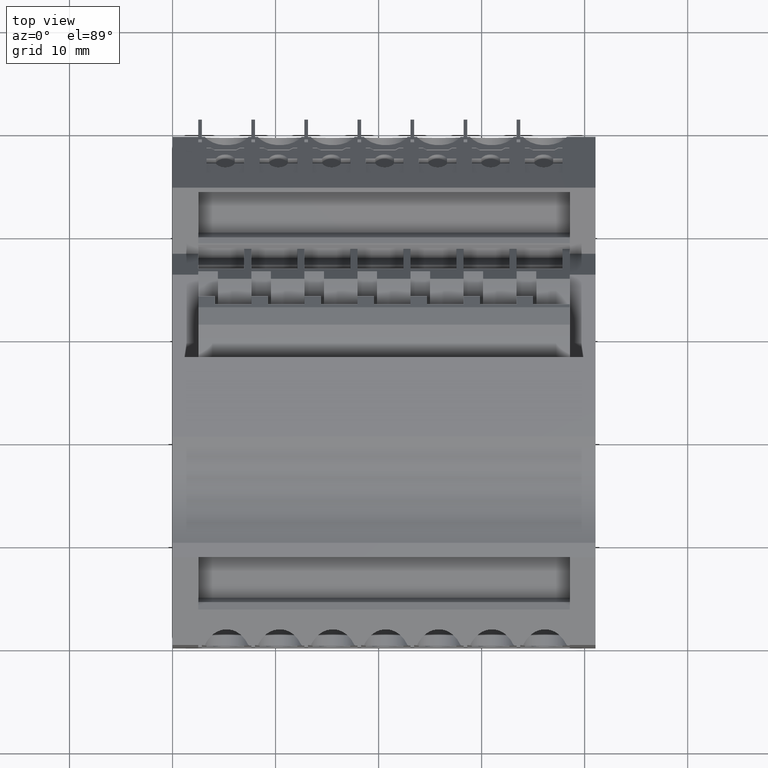
[diagram: clean part render]
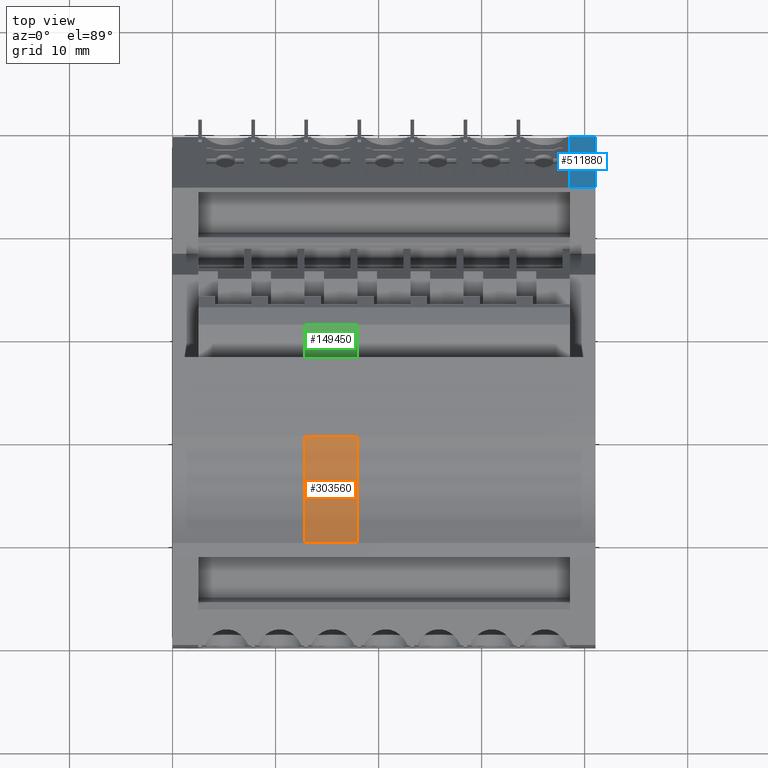
[diagram: same view with three faces highlighted in distinct colors, each labeled with its STEP entity id]
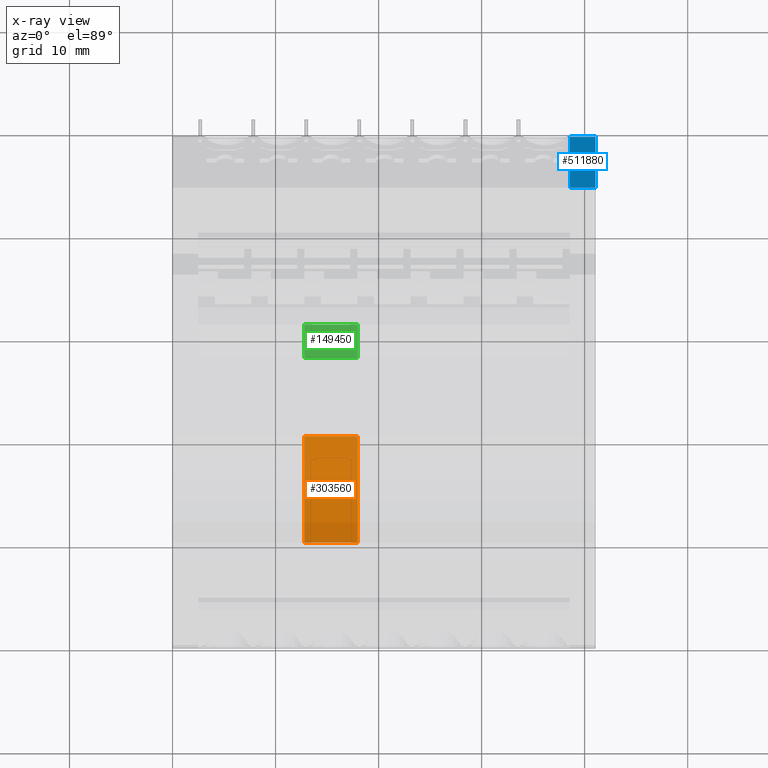
[diagram: x-ray of the same camera — body ghosted, the three highlighted faces saturated]
A machine part, top view with three faces highlighted in distinct colors.
The next image is the same camera in x-ray (body ghosted, the three faces saturated) — at least one of them is partly hidden behind the body in this view.
Their STEP definitions:

[orange] entity #303560 — the highlighted cylindrical surface (partial cylindrical patch) has radius 10 mm, axis along (1, 0, -0).
#49520=CARTESIAN_POINT('',(440.590572543565,697.534347620336,
82.9450001635446));
#49530=DIRECTION('',(3.65710502038586E-10,4.95141851786755E-10,1.));
#49540=VECTOR('',#49530,1.);
#49550=LINE('',#49520,#49540);
#50230=CARTESIAN_POINT('',(430.260883799414,697.534347634237,
82.9450001673223));
#50240=DIRECTION('',(3.65710502038586E-10,4.95141851786755E-10,1.));
#50250=VECTOR('',#50240,1.);
#50260=LINE('',#50230,#50250);
#50290=CARTESIAN_POINT('',(430.260883797759,697.534347634006,
78.4199999840403));
#50300=VERTEX_POINT('',#50290);
#84940=CARTESIAN_POINT('',(435.425728183013,706.097313387596,
82.9450001611936));
#84950=DIRECTION('',(3.65710502038586E-10,4.95141851786755E-10,1.));
#84960=DIRECTION('',(-0.386155668810907,-0.922433628747999,
5.97956747321646E-10));
#84970=AXIS2_PLACEMENT_3D('',#84940,#84950,#84960);
#84980=CYLINDRICAL_SURFACE('',#84970,10.);
#127200=CARTESIAN_POINT('',(430.260883798556,697.534347635201,
83.5699999847475));
#127210=VERTEX_POINT('',#127200);
#202580=CARTESIAN_POINT('',(440.590572545468,697.534347621655,
83.5699999809698));
#202590=VERTEX_POINT('',#202580);
#214520=CARTESIAN_POINT('',(440.59057254191,697.534347621499,
78.4199999832219));
#214530=VERTEX_POINT('',#214520);
#214560=CARTESIAN_POINT('',(435.425728181358,706.097313385355,
78.4199999786187));
#214570=DIRECTION('',(3.65710502038586E-10,4.95141851786755E-10,1.));
#214580=DIRECTION('',(-0.386155668810907,-0.922433628747999,
5.97956728772318E-10));
#214590=AXIS2_PLACEMENT_3D('',#214560,#214570,#214580);
#214600=CIRCLE('',#214590,10.);
#214610=EDGE_CURVE('',#50300,#214530,#214600,.T.);
#275060=EDGE_CURVE('',#50300,#127210,#50260,.T.);
#300520=EDGE_CURVE('',#214530,#202590,#49550,.T.);
#303440=ORIENTED_EDGE('',*,*,#275060,.T.);
#303450=ORIENTED_EDGE('',*,*,#214610,.F.);
#303460=ORIENTED_EDGE('',*,*,#300520,.F.);
#303470=CARTESIAN_POINT('',(435.425728183241,706.097313387905,
83.5699999786187));
#303480=DIRECTION('',(3.65710502038586E-10,4.95141851786755E-10,1.));
#303490=DIRECTION('',(-0.386155668810907,-0.922433628747999,
5.97956728772318E-10));
#303500=AXIS2_PLACEMENT_3D('',#303470,#303480,#303490);
#303510=CIRCLE('',#303500,10.);
#303520=EDGE_CURVE('',#127210,#202590,#303510,.T.);
#303530=ORIENTED_EDGE('',*,*,#303520,.T.);
#303540=EDGE_LOOP('',(#303530,#303460,#303450,#303440));
#303550=FACE_OUTER_BOUND('',#303540,.T.);
#303560=ADVANCED_FACE('',(#303550),#84980,.F.);

[blue] entity #511880 — the highlighted planar face has unit normal (-0, 0.766, 0.6428).
#164320=CARTESIAN_POINT('',(464.820007046268,692.446315891856,
104.169999989755));
#164330=VERTEX_POINT('',#164320);
#238550=CARTESIAN_POINT('',(469.853158763273,686.448039243706,
104.169999993119));
#238560=VERTEX_POINT('',#238550);
#238590=CARTESIAN_POINT('',(460.05709194241,698.122537085043,
104.16999997438));
#238600=DIRECTION('',(-0.642787609225153,0.766044443506127,
-2.68778880427812E-10));
#238610=VECTOR('',#238600,1.);
#238620=LINE('',#238590,#238610);
#238630=EDGE_CURVE('',#238560,#164330,#238620,.T.);
#508080=CARTESIAN_POINT('',(469.853158724605,686.448039218498,
106.669999973448));
#508090=VERTEX_POINT('',#508080);
#508120=CARTESIAN_POINT('',(469.85315872401,686.448039218198,
104.169999982647));
#508130=DIRECTION('',(2.38096615074759E-10,1.19888669890394E-10,1.));
#508140=VECTOR('',#508130,1.);
#508150=LINE('',#508120,#508140);
#508160=EDGE_CURVE('',#238560,#508090,#508150,.T.);
#509060=CARTESIAN_POINT('',(464.820007010811,692.44631586282,
106.669999971788));
#509070=VERTEX_POINT('',#509060);
#509100=CARTESIAN_POINT('',(460.057092043096,698.122536893758,
106.669999970217));
#509110=DIRECTION('',(-0.642787609225153,0.766044443506127,
-2.12018918733443E-10));
#509120=VECTOR('',#509110,1.);
#509130=LINE('',#509100,#509120);
#509140=EDGE_CURVE('',#508090,#509070,#509130,.T.);
#511720=CARTESIAN_POINT('',(480.967221227595,673.202815198897,
-106.980000021057));
#511730=DIRECTION('',(0.766044443506127,0.642787609225153,
-6.31039143605305E-10));
#511740=DIRECTION('',(0.642787609225154,-0.766044443506128,
2.47636814162978E-10));
#511750=AXIS2_PLACEMENT_3D('',#511720,#511730,#511740);
#511760=PLANE('',#511750);
#511770=ORIENTED_EDGE('',*,*,#508160,.F.);
#511780=ORIENTED_EDGE('',*,*,#509140,.F.);
#511790=CARTESIAN_POINT('',(464.820007022724,692.44631583226,
-34.8799999886434));
#511800=DIRECTION('',(3.42324343068774E-10,5.73756365909355E-10,1.));
#511810=VECTOR('',#511800,1.);
#511820=LINE('',#511790,#511810);
#511830=EDGE_CURVE('',#164330,#509070,#511820,.T.);
#511840=ORIENTED_EDGE('',*,*,#511830,.T.);
#511850=ORIENTED_EDGE('',*,*,#238630,.T.);
#511860=EDGE_LOOP('',(#511850,#511840,#511780,#511770));
#511870=FACE_OUTER_BOUND('',#511860,.T.);
#511880=ADVANCED_FACE('',(#511870),#511760,.T.);

[green] entity #149450 — the highlighted cylindrical surface (partial cylindrical patch) has radius 19.9582 mm, axis along (1, 0, -0).
#40940=CARTESIAN_POINT('',(448.253158789038,694.268032378539,
93.8699999782396));
#40950=DIRECTION('',(1.6669925506053E-10,4.90742847764455E-10,1.));
#40960=VECTOR('',#40950,1.);
#40970=LINE('',#40940,#40960);
#48570=CARTESIAN_POINT('',(448.253158792019,694.268032374642,
83.5699999867778));
#48580=VERTEX_POINT('',#48570);
#101760=CARTESIAN_POINT('',(448.253158790838,694.268032370957,
78.4199999845269));
#101770=VERTEX_POINT('',#101760);
#121930=CARTESIAN_POINT('',(451.482223159515,694.787557261741,
78.4199999839668));
#121940=VERTEX_POINT('',#121930);
#121970=CARTESIAN_POINT('',(451.482223161352,694.787557267704,
93.8699999774464));
#121980=DIRECTION('',(-1.6669925506053E-10,-4.90742847764455E-10,-1.));
#121990=VECTOR('',#121980,1.);
#122000=LINE('',#121970,#121990);
#149180=CARTESIAN_POINT('',(453.027343109136,674.889235925531,
93.8699999869537));
#149190=DIRECTION('',(1.6669925506053E-10,4.90742847764455E-10,1.));
#149200=DIRECTION('',(1.,-1.37460914872996E-9,-1.66698987061486E-10));
#149210=AXIS2_PLACEMENT_3D('',#149180,#149190,#149200);
#149220=CYLINDRICAL_SURFACE('',#149210,19.9582210602397);
#149230=CARTESIAN_POINT('',(451.482223160079,694.787557263623,
83.5699999839668));
#149240=VERTEX_POINT('',#149230);
#149250=EDGE_CURVE('',#149240,#121940,#122000,.T.);
#149260=ORIENTED_EDGE('',*,*,#149250,.T.);
#149270=CARTESIAN_POINT('',(453.027343107419,674.889235920476,
83.569999995492));
#149280=DIRECTION('',(1.6669925506053E-10,4.90742847764455E-10,1.));
#149290=DIRECTION('',(1.,-1.37460914872996E-9,-1.66698987061486E-10));
#149300=AXIS2_PLACEMENT_3D('',#149270,#149280,#149290);
#149310=CIRCLE('',#149300,19.9582210602397);
#149320=EDGE_CURVE('',#149240,#48580,#149310,.T.);
#149330=ORIENTED_EDGE('',*,*,#149320,.F.);
#149340=EDGE_CURVE('',#101770,#48580,#40970,.T.);
#149350=ORIENTED_EDGE('',*,*,#149340,.T.);
#149360=CARTESIAN_POINT('',(453.027343106561,674.889235917949,
78.419999995492));
#149370=DIRECTION('',(1.6669925506053E-10,4.90742847764455E-10,1.));
#149380=DIRECTION('',(1.,-1.37460914872996E-9,-1.66698987061486E-10));
#149390=AXIS2_PLACEMENT_3D('',#149360,#149370,#149380);
#149400=CIRCLE('',#149390,19.9582210602397);
#149410=EDGE_CURVE('',#121940,#101770,#149400,.T.);
#149420=ORIENTED_EDGE('',*,*,#149410,.T.);
#149430=EDGE_LOOP('',(#149420,#149350,#149330,#149260));
#149440=FACE_OUTER_BOUND('',#149430,.T.);
#149450=ADVANCED_FACE('',(#149440),#149220,.T.);